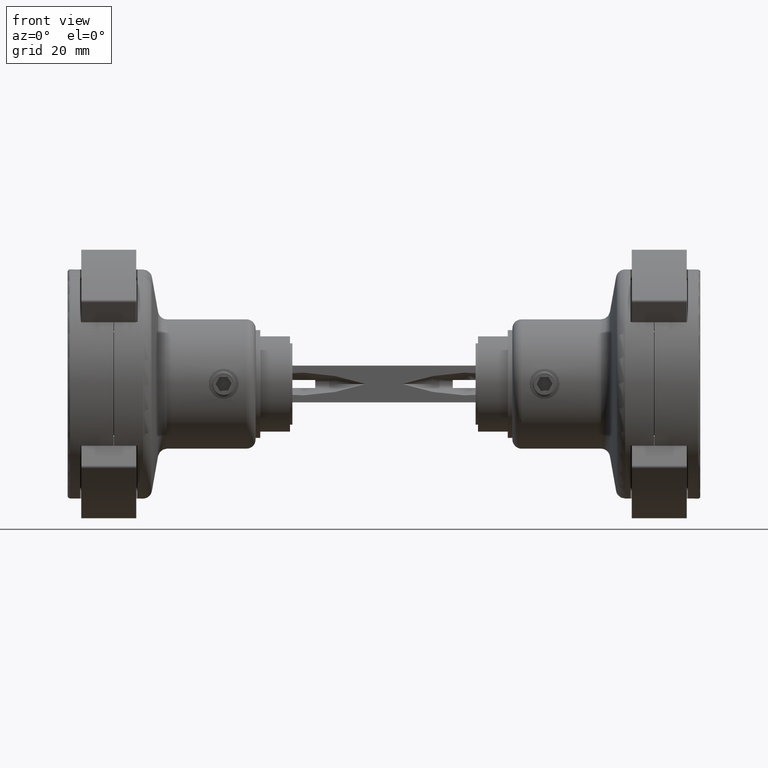
[diagram: clean part render]
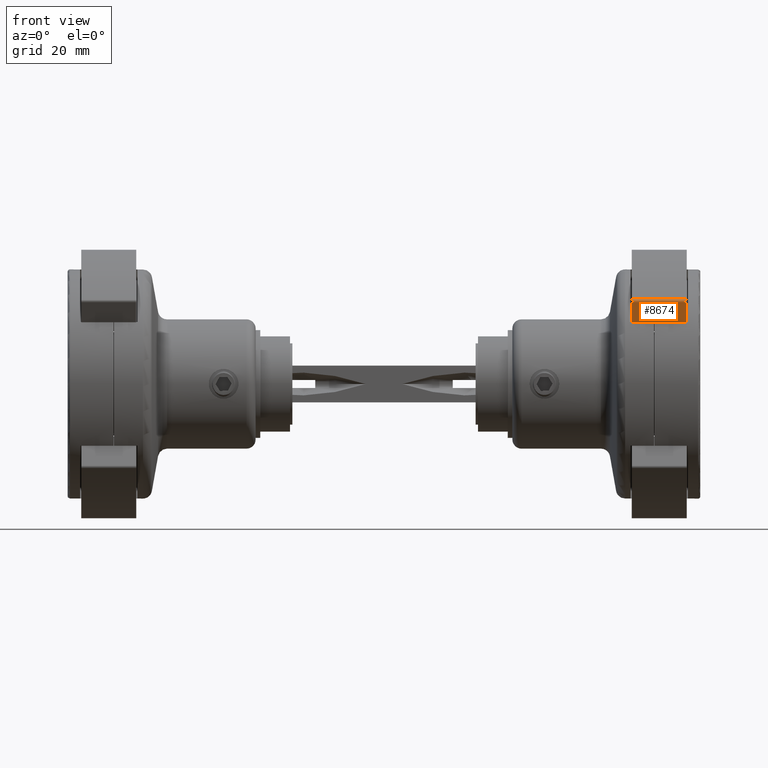
[diagram: same view with one face highlighted and labeled with its STEP entity id]
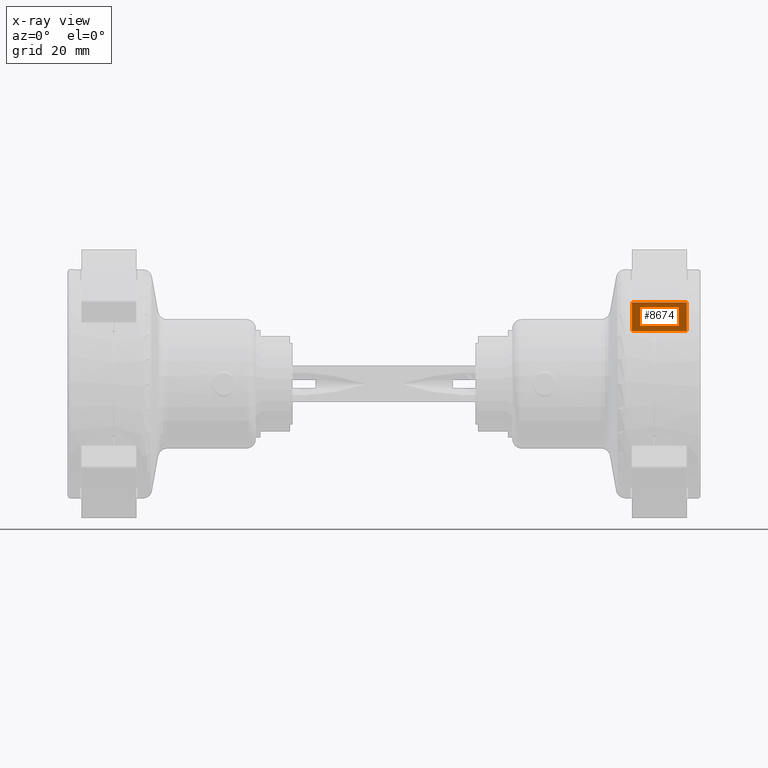
[diagram: x-ray of the same camera — body ghosted, the highlighted face saturated]
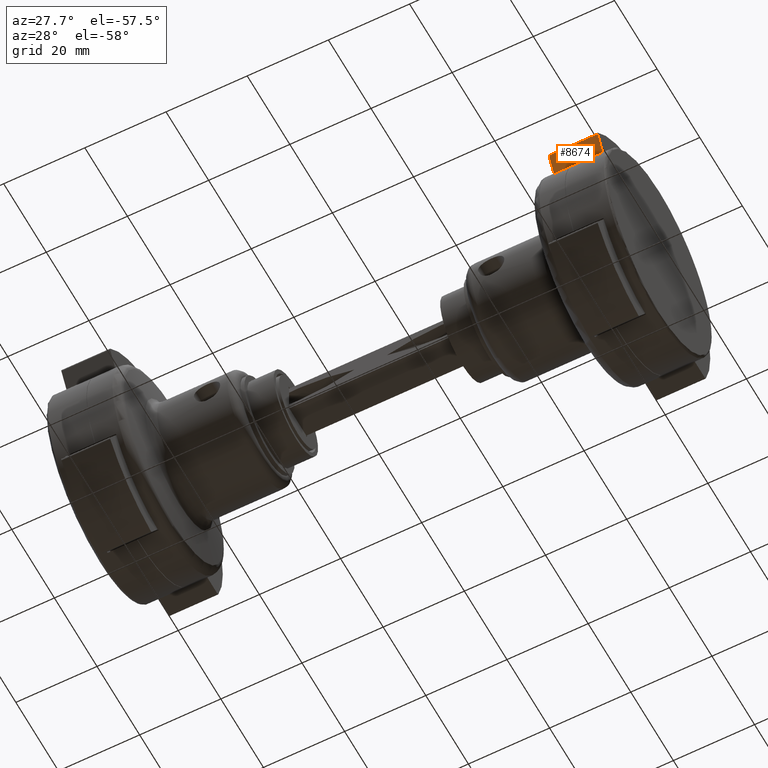
[diagram: same view with one face highlighted and labeled with its STEP entity id]
A machine part, front view. The second image highlights one B-rep face of the part: STEP entity #8674.
The next image is the same camera in x-ray: the body ghosted, the highlighted face saturated — about 0% of this face is hidden behind the body in this view.
A second angle (auxiliary view) of the same face is appended — the face is thin or edge-on in the first view.
In plain terms, the highlighted planar face has unit normal (0, -0.866, -0.5).
Its self-contained STEP definition (entity closure, byte-faithful):
#261 = VECTOR ( 'NONE', #10300, 1000.000000000000000 ) ;
#285 = EDGE_CURVE ( 'NONE', #1929, #10560, #5094, .T. ) ;
#767 = CARTESIAN_POINT ( 'NONE',  ( -17.79370246192117122, -23.26357996303704923, 7.050000000000007816 ) ) ;
#1323 = DIRECTION ( 'NONE',  ( 0.8660254037844363761, 0.5000000000000039968, 1.047546959708650976E-15 ) ) ;
#1929 = VERTEX_POINT ( 'NONE', #767 ) ;
#2309 = ORIENTED_EDGE ( 'NONE', *, *, #8384, .F. ) ;
#2332 = AXIS2_PLACEMENT_3D ( 'NONE', #5862, #15747, #8353 ) ;
#2508 = VECTOR ( 'NONE', #8972, 999.9999999999998863 ) ;
#3922 = CARTESIAN_POINT ( 'NONE',  ( -11.47900172474247071, -19.61778579257491373, -4.949999999999995737 ) ) ;
#4144 = ORIENTED_EDGE ( 'NONE', *, *, #11871, .T. ) ;
#5094 = LINE ( 'NONE', #15210, #261 ) ;
#5167 = DIRECTION ( 'NONE',  ( 9.692327025551828717E-16, 4.163336342344337520E-16, 1.000000000000000000 ) ) ;
#5461 = VERTEX_POINT ( 'NONE', #6381 ) ;
#5862 = CARTESIAN_POINT ( 'NONE',  ( -11.47900172474247071, -19.61778579257491018, -29.76160621783505178 ) ) ;
#5970 = EDGE_CURVE ( 'NONE', #10560, #5461, #6326, .T. ) ;
#6326 = LINE ( 'NONE', #3922, #2508 ) ;
#6381 = CARTESIAN_POINT ( 'NONE',  ( -11.47900172474247071, -19.61778579257491373, -4.949999999999995737 ) ) ;
#7408 = LINE ( 'NONE', #11207, #12802 ) ;
#8270 = VERTEX_POINT ( 'NONE', #14343 ) ;
#8353 = DIRECTION ( 'NONE',  ( 9.692327025551828717E-16, 4.163336342344337520E-16, 1.000000000000000000 ) ) ;
#8384 = EDGE_CURVE ( 'NONE', #1929, #8270, #11311, .T. ) ;
#8674 = ADVANCED_FACE ( 'NONE', ( #13604 ), #12007, .T. ) ;
#8972 = DIRECTION ( 'NONE',  ( 0.8660254037844363761, 0.5000000000000039968, 1.047546959708650976E-15 ) ) ;
#9185 = CARTESIAN_POINT ( 'NONE',  ( -17.79370246192122451, -23.26357996303704567, -4.950000000000100542 ) ) ;
#9570 = VECTOR ( 'NONE', #1323, 999.9999999999998863 ) ;
#9620 = ORIENTED_EDGE ( 'NONE', *, *, #5970, .T. ) ;
#10300 = DIRECTION ( 'NONE',  ( -9.692327025551828717E-16, -4.163336342344337520E-16, -1.000000000000000000 ) ) ;
#10560 = VERTEX_POINT ( 'NONE', #9185 ) ;
#11207 = CARTESIAN_POINT ( 'NONE',  ( -11.47900172474247071, -19.61778579257491018, -29.76160621783505178 ) ) ;
#11311 = LINE ( 'NONE', #15970, #9570 ) ;
#11871 = EDGE_CURVE ( 'NONE', #5461, #8270, #7408, .T. ) ;
#12007 = PLANE ( 'NONE',  #2332 ) ;
#12802 = VECTOR ( 'NONE', #5167, 1000.000000000000000 ) ;
#13604 = FACE_OUTER_BOUND ( 'NONE', #15648, .T. ) ;
#14171 = ORIENTED_EDGE ( 'NONE', *, *, #285, .T. ) ;
#14343 = CARTESIAN_POINT ( 'NONE',  ( -11.47900172474244407, -19.61778579257491728, 7.050000000000007816 ) ) ;
#15210 = CARTESIAN_POINT ( 'NONE',  ( -17.79370246192122096, -23.26357996303704923, -29.76160621783505178 ) ) ;
#15648 = EDGE_LOOP ( 'NONE', ( #2309, #14171, #9620, #4144 ) ) ;
#15747 = DIRECTION ( 'NONE',  ( 0.5000000000000039968, -0.8660254037844363761, -1.240608475806779719E-16 ) ) ;
#15970 = CARTESIAN_POINT ( 'NONE',  ( -11.47900172474244407, -19.61778579257491728, 7.050000000000007816 ) ) ;